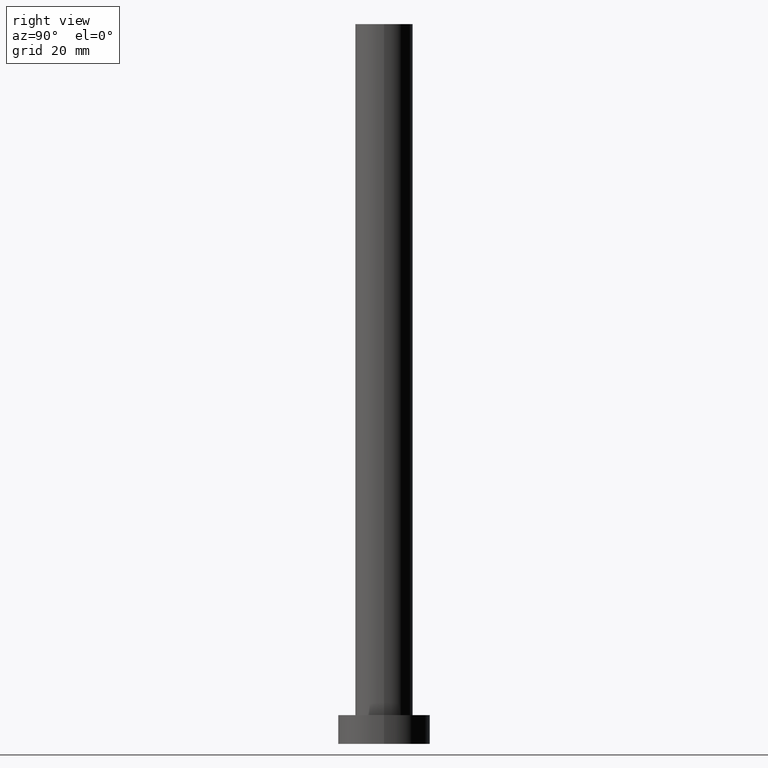
[diagram: clean part render]
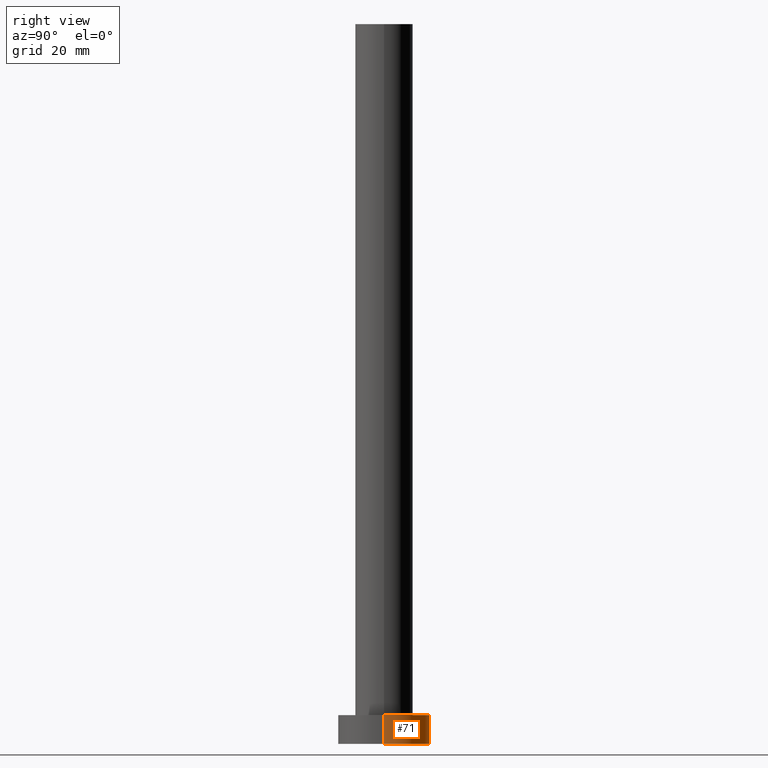
[diagram: same view with one face highlighted and labeled with its STEP entity id]
A machine part, right view. The second image highlights one B-rep face of the part: STEP entity #71.
In plain terms, the highlighted cylindrical surface (partial cylindrical patch) has radius 8 mm, axis along (-0, -0, -1).
Its self-contained STEP definition (entity closure, byte-faithful):
#6 = AXIS2_PLACEMENT_3D ( 'NONE', #181, #84, #65 ) ;
#7 = VERTEX_POINT ( 'NONE', #36 ) ;
#10 = EDGE_CURVE ( 'NONE', #206, #255, #147, .T. ) ;
#27 = FACE_OUTER_BOUND ( 'NONE', #59, .T. ) ;
#36 = CARTESIAN_POINT ( 'NONE',  ( 8.000000000000000000, 9.797174393178825657E-16, 0.000000000000000000 ) ) ;
#39 = CARTESIAN_POINT ( 'NONE',  ( -8.000000000000000000, 0.000000000000000000, 0.000000000000000000 ) ) ;
#40 = ORIENTED_EDGE ( 'NONE', *, *, #97, .T. ) ;
#45 = CARTESIAN_POINT ( 'NONE',  ( -8.000000000000000000, 0.000000000000000000, 5.000000000000000000 ) ) ;
#57 = ORIENTED_EDGE ( 'NONE', *, *, #10, .F. ) ;
#59 = EDGE_LOOP ( 'NONE', ( #57, #40, #101, #120 ) ) ;
#61 = VECTOR ( 'NONE', #213, 1000.000000000000000 ) ;
#65 = DIRECTION ( 'NONE',  ( -1.000000000000000000, 0.000000000000000000, 0.000000000000000000 ) ) ;
#71 = ADVANCED_FACE ( 'NONE', ( #27 ), #150, .T. ) ;
#84 = DIRECTION ( 'NONE',  ( -0.000000000000000000, -0.000000000000000000, -1.000000000000000000 ) ) ;
#97 = EDGE_CURVE ( 'NONE', #206, #7, #228, .T. ) ;
#100 = AXIS2_PLACEMENT_3D ( 'NONE', #226, #126, #102 ) ;
#101 = ORIENTED_EDGE ( 'NONE', *, *, #186, .T. ) ;
#102 = DIRECTION ( 'NONE',  ( 1.000000000000000000, 0.000000000000000000, 0.000000000000000000 ) ) ;
#120 = ORIENTED_EDGE ( 'NONE', *, *, #214, .F. ) ;
#126 = DIRECTION ( 'NONE',  ( 0.000000000000000000, 0.000000000000000000, 1.000000000000000000 ) ) ;
#138 = CARTESIAN_POINT ( 'NONE',  ( -8.000000000000000000, 0.000000000000000000, 5.000000000000000000 ) ) ;
#147 = CIRCLE ( 'NONE', #100, 8.000000000000000000 ) ;
#150 = CYLINDRICAL_SURFACE ( 'NONE', #6, 8.000000000000000000 ) ;
#158 = CARTESIAN_POINT ( 'NONE',  ( 8.000000000000000000, 9.797174393178825657E-16, 5.000000000000000000 ) ) ;
#160 = DIRECTION ( 'NONE',  ( 1.000000000000000000, 0.000000000000000000, 0.000000000000000000 ) ) ;
#172 = DIRECTION ( 'NONE',  ( 0.000000000000000000, 0.000000000000000000, 1.000000000000000000 ) ) ;
#173 = CARTESIAN_POINT ( 'NONE',  ( 0.000000000000000000, 0.000000000000000000, 0.000000000000000000 ) ) ;
#181 = CARTESIAN_POINT ( 'NONE',  ( 0.000000000000000000, 0.000000000000000000, 5.000000000000000000 ) ) ;
#186 = EDGE_CURVE ( 'NONE', #7, #217, #248, .T. ) ;
#196 = DIRECTION ( 'NONE',  ( -0.000000000000000000, -0.000000000000000000, -1.000000000000000000 ) ) ;
#206 = VERTEX_POINT ( 'NONE', #158 ) ;
#208 = AXIS2_PLACEMENT_3D ( 'NONE', #173, #172, #160 ) ;
#213 = DIRECTION ( 'NONE',  ( -0.000000000000000000, -0.000000000000000000, -1.000000000000000000 ) ) ;
#214 = EDGE_CURVE ( 'NONE', #255, #217, #231, .T. ) ;
#217 = VERTEX_POINT ( 'NONE', #39 ) ;
#226 = CARTESIAN_POINT ( 'NONE',  ( 0.000000000000000000, 0.000000000000000000, 5.000000000000000000 ) ) ;
#227 = VECTOR ( 'NONE', #196, 1000.000000000000000 ) ;
#228 = LINE ( 'NONE', #252, #227 ) ;
#231 = LINE ( 'NONE', #138, #61 ) ;
#248 = CIRCLE ( 'NONE', #208, 8.000000000000000000 ) ;
#252 = CARTESIAN_POINT ( 'NONE',  ( 8.000000000000000000, 9.797174393178825657E-16, 5.000000000000000000 ) ) ;
#255 = VERTEX_POINT ( 'NONE', #45 ) ;